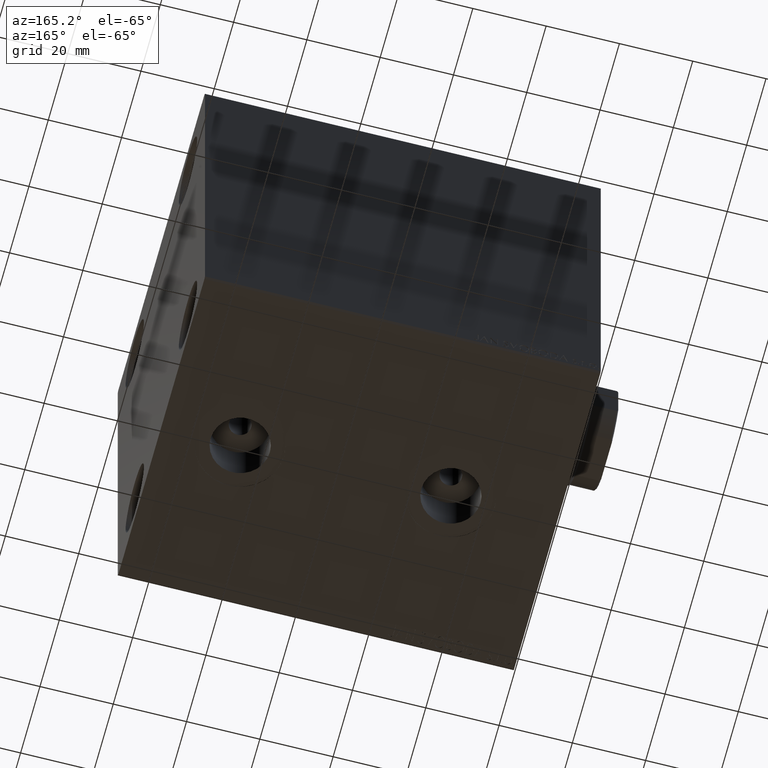
[diagram: clean part render]
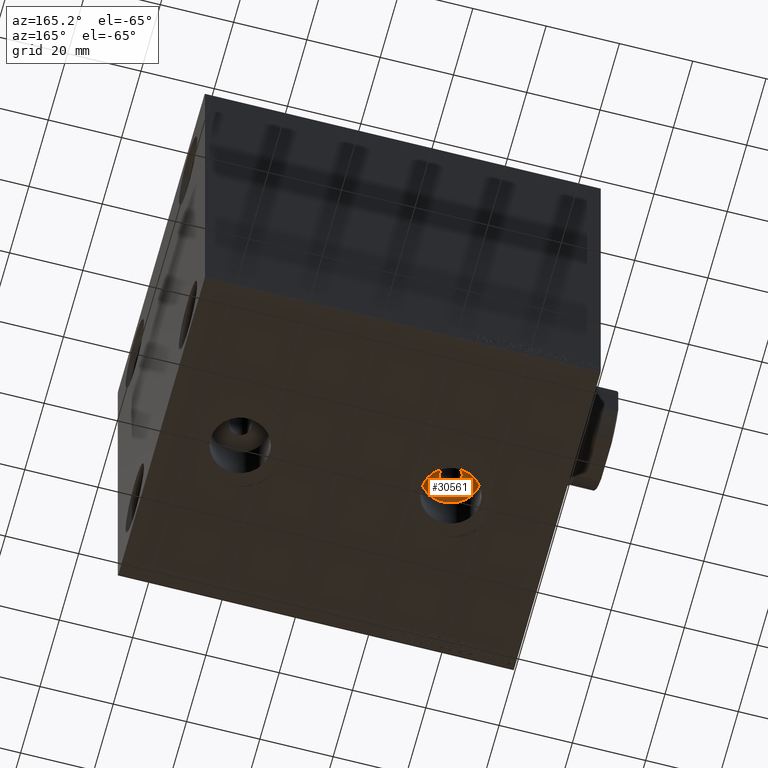
[diagram: same view with one face highlighted and labeled with its STEP entity id]
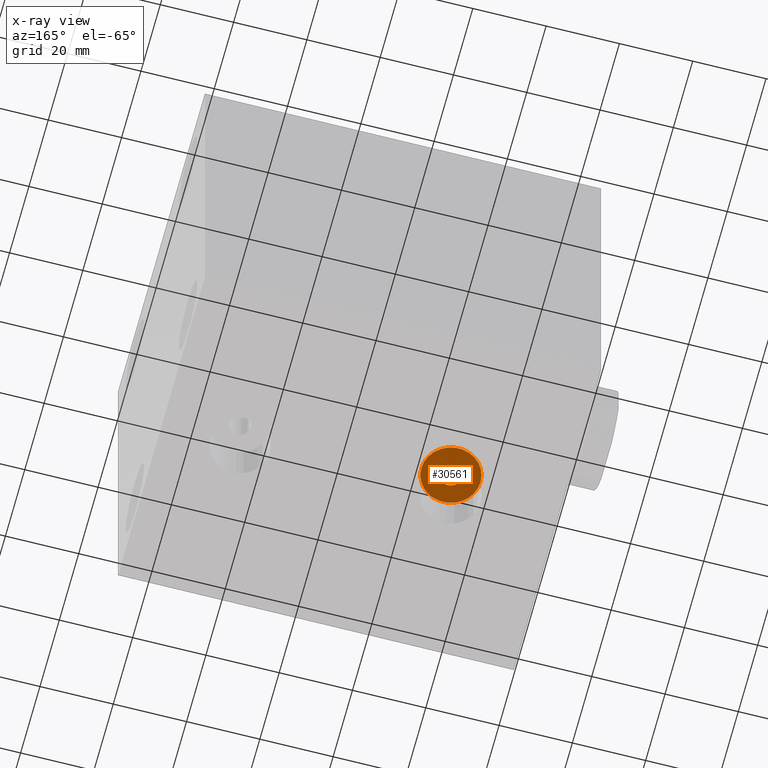
[diagram: x-ray of the same camera — body ghosted, the highlighted face saturated]
A machine part, auxiliary view. The second image highlights one B-rep face of the part: STEP entity #30561.
The next image is the same camera in x-ray: the body ghosted, the highlighted face saturated — about 0% of this face is hidden behind the body in this view.
In plain terms, the highlighted planar face has unit normal (0, 0, -1).
Its self-contained STEP definition (entity closure, byte-faithful):
#232 = CIRCLE ( 'NONE', #30971, 2.999999999999999112 ) ;
#853 = AXIS2_PLACEMENT_3D ( 'NONE', #24581, #44784, #16825 ) ;
#3011 = AXIS2_PLACEMENT_3D ( 'NONE', #23876, #23181, #34419 ) ;
#3125 = CARTESIAN_POINT ( 'NONE',  ( 29.00000000000000000, -6.196433163362529681E-15, -44.50000000000000711 ) ) ;
#3302 = VERTEX_POINT ( 'NONE', #21454 ) ;
#3484 = CIRCLE ( 'NONE', #21168, 8.084999999999999076 ) ;
#5803 = ORIENTED_EDGE ( 'NONE', *, *, #40898, .F. ) ;
#7533 = DIRECTION ( 'NONE',  ( -1.000000000000000000, 0.000000000000000000, -0.000000000000000000 ) ) ;
#7984 = FACE_BOUND ( 'NONE', #9678, .T. ) ;
#8142 = CIRCLE ( 'NONE', #3011, 8.084999999999999076 ) ;
#8662 = EDGE_CURVE ( 'NONE', #32093, #15234, #8142, .T. ) ;
#9172 = EDGE_LOOP ( 'NONE', ( #29470, #43467 ) ) ;
#9678 = EDGE_LOOP ( 'NONE', ( #32283, #5803 ) ) ;
#9845 = EDGE_CURVE ( 'NONE', #12559, #3302, #12548, .T. ) ;
#10964 = FACE_OUTER_BOUND ( 'NONE', #9172, .T. ) ;
#11081 = AXIS2_PLACEMENT_3D ( 'NONE', #28608, #41914, #7533 ) ;
#12548 = CIRCLE ( 'NONE', #853, 2.999999999999999112 ) ;
#12559 = VERTEX_POINT ( 'NONE', #27642 ) ;
#13426 = DIRECTION ( 'NONE',  ( -1.000000000000000000, 0.000000000000000000, 0.000000000000000000 ) ) ;
#15234 = VERTEX_POINT ( 'NONE', #18350 ) ;
#16825 = DIRECTION ( 'NONE',  ( -1.000000000000000000, 0.000000000000000000, 0.000000000000000000 ) ) ;
#17107 = DIRECTION ( 'NONE',  ( 0.000000000000000000, 0.000000000000000000, -1.000000000000000000 ) ) ;
#18350 = CARTESIAN_POINT ( 'NONE',  ( 37.08500000000000085, -5.206306226251895314E-15, -44.50000000000000711 ) ) ;
#20598 = DIRECTION ( 'NONE',  ( -1.000000000000000000, 0.000000000000000000, 0.000000000000000000 ) ) ;
#20836 = EDGE_CURVE ( 'NONE', #15234, #32093, #3484, .T. ) ;
#21168 = AXIS2_PLACEMENT_3D ( 'NONE', #34772, #34092, #20598 ) ;
#21454 = CARTESIAN_POINT ( 'NONE',  ( 32.00000000000000000, -5.829039123618324237E-15, -44.50000000000000711 ) ) ;
#23181 = DIRECTION ( 'NONE',  ( 0.000000000000000000, 0.000000000000000000, -1.000000000000000000 ) ) ;
#23876 = CARTESIAN_POINT ( 'NONE',  ( 29.00000000000000000, -6.196433163362529681E-15, -44.50000000000000711 ) ) ;
#24581 = CARTESIAN_POINT ( 'NONE',  ( 29.00000000000000000, -6.196433163362529681E-15, -44.50000000000000711 ) ) ;
#24943 = PLANE ( 'NONE',  #11081 ) ;
#27642 = CARTESIAN_POINT ( 'NONE',  ( 26.00000000000000355, -6.196433163362529681E-15, -44.50000000000000711 ) ) ;
#28608 = CARTESIAN_POINT ( 'NONE',  ( 29.00000000000000000, -6.196433163362529681E-15, -44.50000000000000711 ) ) ;
#29470 = ORIENTED_EDGE ( 'NONE', *, *, #8662, .T. ) ;
#30561 = ADVANCED_FACE ( 'NONE', ( #7984, #10964 ), #24943, .T. ) ;
#30971 = AXIS2_PLACEMENT_3D ( 'NONE', #3125, #17107, #13426 ) ;
#32093 = VERTEX_POINT ( 'NONE', #39163 ) ;
#32283 = ORIENTED_EDGE ( 'NONE', *, *, #9845, .F. ) ;
#34092 = DIRECTION ( 'NONE',  ( 0.000000000000000000, 0.000000000000000000, -1.000000000000000000 ) ) ;
#34419 = DIRECTION ( 'NONE',  ( -1.000000000000000000, 0.000000000000000000, 0.000000000000000000 ) ) ;
#34772 = CARTESIAN_POINT ( 'NONE',  ( 29.00000000000000000, -6.196433163362529681E-15, -44.50000000000000711 ) ) ;
#39163 = CARTESIAN_POINT ( 'NONE',  ( 20.91500000000000270, -6.196433163362529681E-15, -44.50000000000000711 ) ) ;
#40898 = EDGE_CURVE ( 'NONE', #3302, #12559, #232, .T. ) ;
#41914 = DIRECTION ( 'NONE',  ( 0.000000000000000000, 0.000000000000000000, -1.000000000000000000 ) ) ;
#43467 = ORIENTED_EDGE ( 'NONE', *, *, #20836, .T. ) ;
#44784 = DIRECTION ( 'NONE',  ( 0.000000000000000000, 0.000000000000000000, -1.000000000000000000 ) ) ;